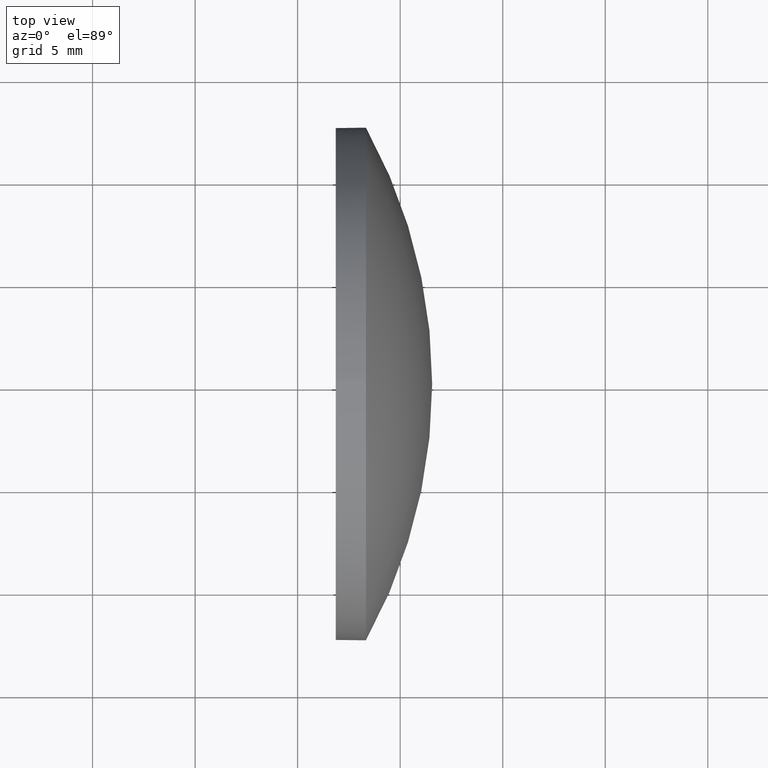
[diagram: clean part render]
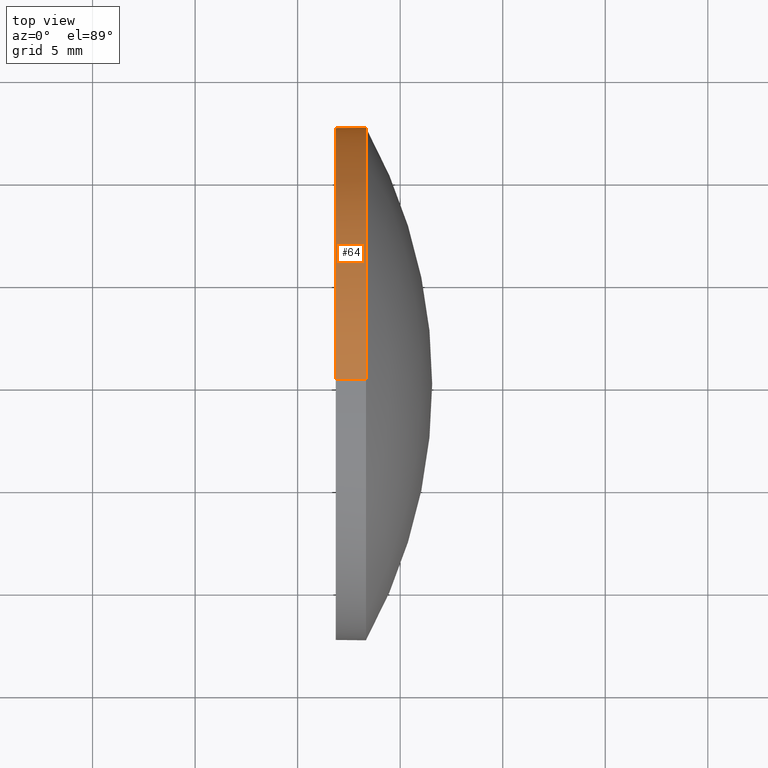
[diagram: same view with one face highlighted and labeled with its STEP entity id]
A machine part, top view. The second image highlights one B-rep face of the part: STEP entity #64.
In plain terms, the highlighted cylindrical surface (partial cylindrical patch) has radius 12.5 mm, axis along (-1, -0, -0).
Its self-contained STEP definition (entity closure, byte-faithful):
#11 = DIRECTION ( 'NONE',  ( -1.000000000000000000, -0.0000000000000000000, -0.0000000000000000000 ) ) ;
#23 = CARTESIAN_POINT ( 'NONE',  ( 426.8600550591363600, -24.92783604908413500, 12.49999999999999800 ) ) ;
#29 = VERTEX_POINT ( 'NONE', #88 ) ;
#35 = CARTESIAN_POINT ( 'NONE',  ( 424.8309474806993600, -24.92783604908413500, -12.49999999999999800 ) ) ;
#36 = DIRECTION ( 'NONE',  ( 0.0000000000000000000, 0.0000000000000000000, 1.000000000000000000 ) ) ;
#42 = CYLINDRICAL_SURFACE ( 'NONE', #57, 12.49999999999999800 ) ;
#46 = CIRCLE ( 'NONE', #118, 12.49999999999999800 ) ;
#56 = CARTESIAN_POINT ( 'NONE',  ( 424.8309474806993600, -24.92783604908413500, 12.49999999999999800 ) ) ;
#57 = AXIS2_PLACEMENT_3D ( 'NONE', #82, #183, #108 ) ;
#64 = ADVANCED_FACE ( 'NONE', ( #158 ), #42, .T. ) ;
#66 = CARTESIAN_POINT ( 'NONE',  ( 428.3300550591363800, -12.42783604908413700, 0.0000000000000000000 ) ) ;
#67 = VECTOR ( 'NONE', #119, 1000.000000000000000 ) ;
#71 = CARTESIAN_POINT ( 'NONE',  ( 428.3300550591363800, -24.92783604908413500, 0.0000000000000000000 ) ) ;
#72 = ORIENTED_EDGE ( 'NONE', *, *, #86, .T. ) ;
#76 = EDGE_CURVE ( 'NONE', #182, #138, #115, .T. ) ;
#81 = CARTESIAN_POINT ( 'NONE',  ( 428.3300550591363800, -24.92783604908413500, 0.0000000000000000000 ) ) ;
#82 = CARTESIAN_POINT ( 'NONE',  ( 424.8309474806993600, -24.92783604908413500, 0.0000000000000000000 ) ) ;
#86 = EDGE_CURVE ( 'NONE', #164, #182, #46, .T. ) ;
#88 = CARTESIAN_POINT ( 'NONE',  ( 426.8600550591363600, -24.92783604908413500, -12.49999999999999800 ) ) ;
#89 = CIRCLE ( 'NONE', #96, 12.49999999999999800 ) ;
#91 = ORIENTED_EDGE ( 'NONE', *, *, #137, .T. ) ;
#92 = DIRECTION ( 'NONE',  ( 0.0000000000000000000, 0.0000000000000000000, 1.000000000000000000 ) ) ;
#95 = CARTESIAN_POINT ( 'NONE',  ( 428.3300550591363800, -24.92783604908413500, 12.49999999999999800 ) ) ;
#96 = AXIS2_PLACEMENT_3D ( 'NONE', #165, #151, #92 ) ;
#107 = AXIS2_PLACEMENT_3D ( 'NONE', #81, #121, #36 ) ;
#108 = DIRECTION ( 'NONE',  ( 0.0000000000000000000, 0.0000000000000000000, 1.000000000000000000 ) ) ;
#115 = CIRCLE ( 'NONE', #107, 12.49999999999999800 ) ;
#117 = ORIENTED_EDGE ( 'NONE', *, *, #76, .T. ) ;
#118 = AXIS2_PLACEMENT_3D ( 'NONE', #71, #152, #123 ) ;
#119 = DIRECTION ( 'NONE',  ( -1.000000000000000000, -0.0000000000000000000, -0.0000000000000000000 ) ) ;
#121 = DIRECTION ( 'NONE',  ( -1.000000000000000000, -0.0000000000000000000, -0.0000000000000000000 ) ) ;
#123 = DIRECTION ( 'NONE',  ( 0.0000000000000000000, 0.0000000000000000000, 1.000000000000000000 ) ) ;
#134 = VERTEX_POINT ( 'NONE', #23 ) ;
#136 = CARTESIAN_POINT ( 'NONE',  ( 428.3300550591363800, -24.92783604908413500, -12.49999999999999800 ) ) ;
#137 = EDGE_CURVE ( 'NONE', #138, #29, #139, .T. ) ;
#138 = VERTEX_POINT ( 'NONE', #136 ) ;
#139 = LINE ( 'NONE', #35, #67 ) ;
#144 = LINE ( 'NONE', #56, #174 ) ;
#147 = EDGE_CURVE ( 'NONE', #134, #29, #89, .T. ) ;
#148 = EDGE_LOOP ( 'NONE', ( #117, #91, #162, #185, #72 ) ) ;
#151 = DIRECTION ( 'NONE',  ( -1.000000000000000000, -0.0000000000000000000, -0.0000000000000000000 ) ) ;
#152 = DIRECTION ( 'NONE',  ( -1.000000000000000000, -0.0000000000000000000, -0.0000000000000000000 ) ) ;
#158 = FACE_OUTER_BOUND ( 'NONE', #148, .T. ) ;
#162 = ORIENTED_EDGE ( 'NONE', *, *, #147, .F. ) ;
#164 = VERTEX_POINT ( 'NONE', #95 ) ;
#165 = CARTESIAN_POINT ( 'NONE',  ( 426.8600550591363600, -24.92783604908413500, 0.0000000000000000000 ) ) ;
#174 = VECTOR ( 'NONE', #11, 1000.000000000000000 ) ;
#177 = EDGE_CURVE ( 'NONE', #164, #134, #144, .T. ) ;
#182 = VERTEX_POINT ( 'NONE', #66 ) ;
#183 = DIRECTION ( 'NONE',  ( -1.000000000000000000, -0.0000000000000000000, -0.0000000000000000000 ) ) ;
#185 = ORIENTED_EDGE ( 'NONE', *, *, #177, .F. ) ;